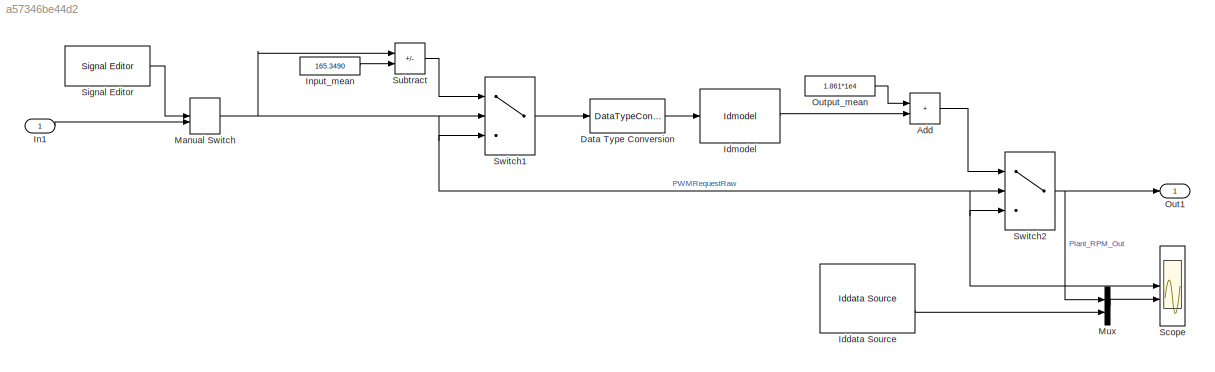
MODEL slx_a57346be44d2
KIND model
CONFIG AbsTol = auto
CONFIG EnableMultiTasking = on
CONFIG FixedStep = auto
CONFIG MaxStep = auto
CONFIG MinStep = auto
CONFIG RelTol = 1e-3
CONFIG SampleTimeConstraint = Unconstrained
CONFIG SolverName = FixedStepAuto
CONFIG StartTime = 0.0
CONFIG StopTime = 250
BLOCK [Sum] Add
  IconShape = rectangular
BLOCK [DataTypeConversion] Data Type Conversion
  RndMeth = Floor
  SaturateOnIntegerOverflow = off
BLOCK [Reference] Iddata Source  REF=slident/Iddata Source  (lib defined in mdl_f7d4911ca73a)
  SourceBlock = slident/Iddata Source
  SourceType = Iddata InputOutput
BLOCK [Reference] Idmodel  REF=slident/Models/Idmodel  (lib defined in mdl_f7d4911ca73a)
  SourceBlock = slident/Models/Idmodel
  SourceType = Idmodel Block
BLOCK [Inport] In1
  OutDataTypeStr = double
  PortDimensions = 1
  SampleTime = 0
  SamplingMode = Sample based
  SignalType = real
BLOCK [Constant] Input_mean
  Value = 165.3490
BLOCK [ManualSwitch] Manual Switch
  CurrentSetting = 0
BLOCK [Mux] Mux
  DisplayOption = bar
  Inputs = 2
BLOCK [Outport] Out1
  OutDataTypeStr = double
  PortDimensions = 1
  SampleTime = 0
  SamplingMode = Sample based
  SignalType = real
BLOCK [Constant] Output_mean
  Value = 1.861*1e4
BLOCK [Scope] Scope
  ActiveDisplayYMaximum = 270
  ActiveDisplayYMinimum = -29.999999999999993
  DataLoggingVariableName = ScopeData1
  Floating = off
  GraphicalSettings = {"Style":{"BackgroundColor":[0.12941176470588237,0.12941176470588237,0.12941176470588237],"AxesColor":[0.07058823529411765,0.07058823529411765,0.07058823529411765],"LabelsColor":[0.8509803921568627,0.8509803921568627,0.8509803921568627],"PreserveColors":false,"Visible":[true,true,true],"LineStyle":["-","-","-"],"LineWidth":[1.5,1.5,1.5],"BarWidth":[0.9,0.9,0.9],"LineColor":["auto","auto","auto"],"...<+2559ch>
  LayoutDimensionsString = [2,1]
  MultipleDisplayCache = [{"MaxYLimMag":270,"MaxYLimReal":270,"MinYLimMag":0,"MinYLimReal":-29.999999999999993,"PlotAsMagnitudePhase":false,"ShowGrid":true,"ShowLegend":false,"Title":"%<SignalLabel>","YLabel":""},{"MaxYLimMag":22394.835,"MaxYLimReal":22394.835,"MinYLimMag":0,"MinYLimReal":-2488.3149999999996,"PlotAsMagnitudePhase":false,"ShowGrid":true,"ShowLegend":false,"Title":"%<SignalLabel>","YLabel":""}]
  NumInputPorts = 2
  ScopeFrameLocation = window
  WasSavedAsWebScope = on
  WindowPosition = [798.000000,95.000000,871.000000,866.000000,]
BLOCK [Reference] Signal Editor  REF=SignalEditorBlockLib/Signal Editor
  LibrarySourceBlock = simulink/Sources/Signal Editor
  SourceBlock = SignalEditorBlockLib/Signal Editor
  SourceType = SignalEditor
  UserDataPersistent = on
BLOCK [Sum] Subtract
  IconShape = rectangular
  Inputs = +-
BLOCK [Switch] Switch1
  Criteria = u2 > Threshold
  InputSameDT = off
  SaturateOnIntegerOverflow = off
BLOCK [Switch] Switch2
  Criteria = u2 > Threshold
  InputSameDT = off
  SaturateOnIntegerOverflow = off
LINE Add:1 -> Switch2:1
LINE Data Type Conversion:1 -> Idmodel:1
LINE Iddata Source:2 -> Mux:2
LINE Idmodel:1 -> Add:2
LINE In1:1 -> Manual Switch:2
LINE Input_mean:1 -> Subtract:2
NET Manual Switch:1 -> Scope:1, Subtract:1, Switch1:2, Switch1:3, Switch2:2, Switch2:3
LINE Mux:1 -> Scope:2
LINE Output_mean:1 -> Add:1
LINE Signal Editor:1 -> Manual Switch:1
LINE Subtract:1 -> Switch1:1
LINE Switch1:1 -> Data Type Conversion:1
NET Switch2:1 -> Mux:1, Out1:1
note: NET lines group one-source signal fan-out (src -> all destinations, sorted); 1:1 wires keep LINE
